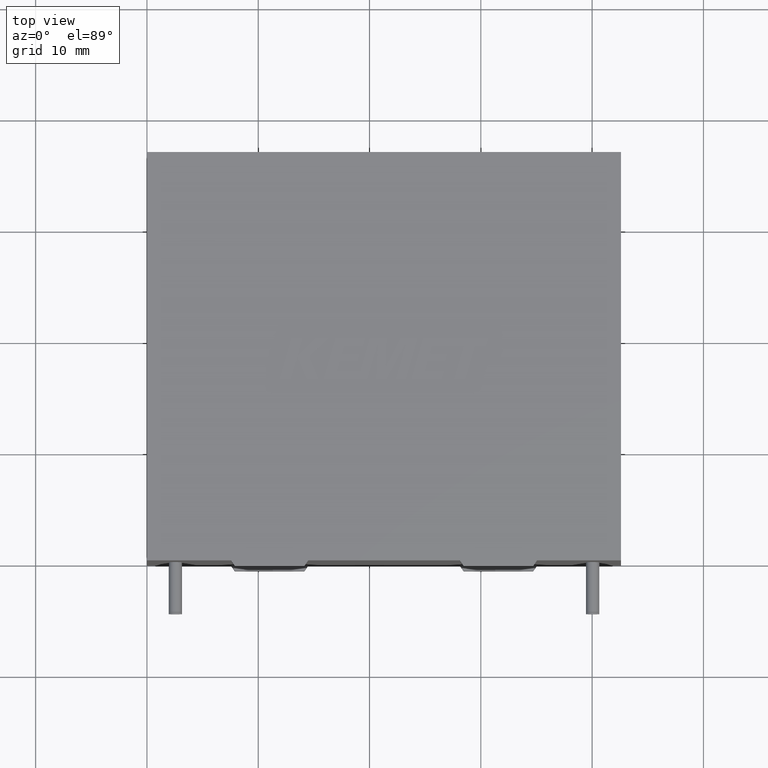
[diagram: clean part render]
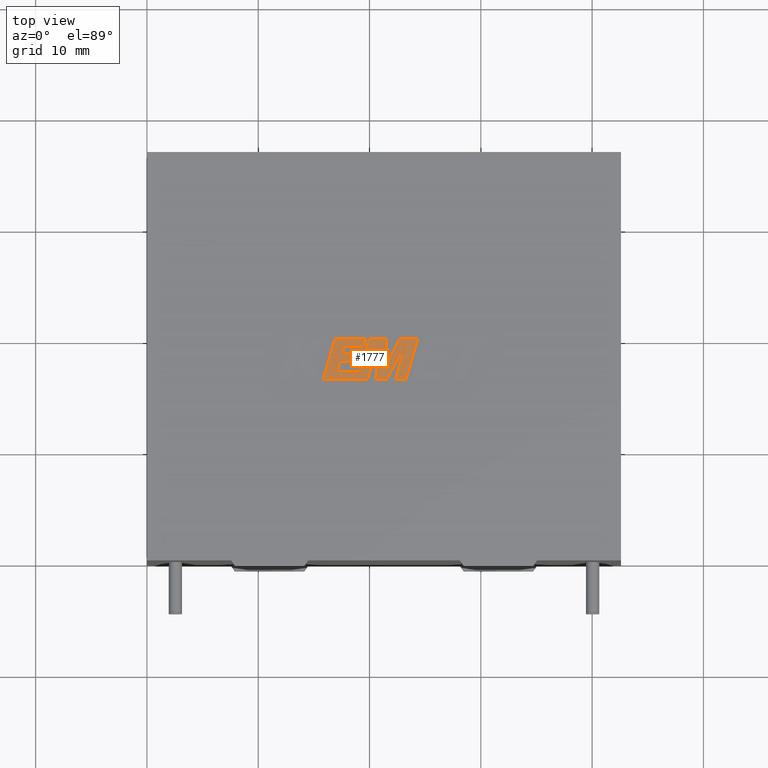
[diagram: same view with one face highlighted and labeled with its STEP entity id]
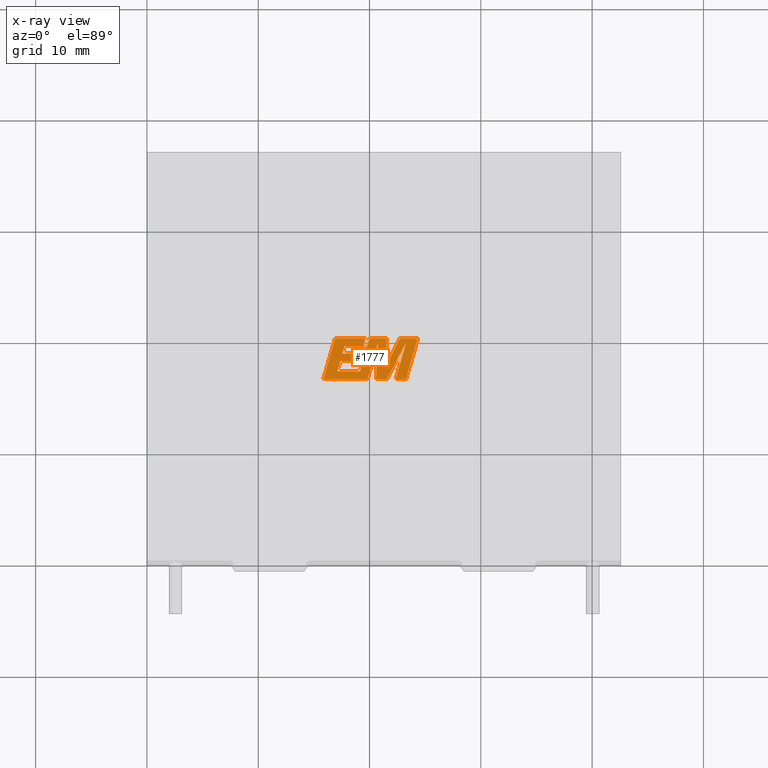
[diagram: x-ray of the same camera — body ghosted, the highlighted face saturated]
A machine part, top view. The second image highlights one B-rep face of the part: STEP entity #1777.
The next image is the same camera in x-ray: the body ghosted, the highlighted face saturated — about 0% of this face is hidden behind the body in this view.
In plain terms, the highlighted planar face has unit normal (0, 0, -1).
Its self-contained STEP definition (entity closure, byte-faithful):
#13 = PLANE ( 'NONE',  #2867 ) ;
#18 = DIRECTION ( 'NONE',  ( 0.2759782365590797700, 0.9611638845408937400, 0.0000000000000000000 ) ) ;
#34 = LINE ( 'NONE', #2845, #1220 ) ;
#39 = CARTESIAN_POINT ( 'NONE',  ( 24.34385082149052700, 19.96864435772087300, 28.40500000000000100 ) ) ;
#42 = CARTESIAN_POINT ( 'NONE',  ( 17.09779395475023000, 16.98632166693396100, 28.40500000000000100 ) ) ;
#45 = CARTESIAN_POINT ( 'NONE',  ( 23.28495559953109500, 16.28562499999988600, 28.40500000000000100 ) ) ;
#66 = VERTEX_POINT ( 'NONE', #2467 ) ;
#93 = ORIENTED_EDGE ( 'NONE', *, *, #2479, .T. ) ;
#105 = DIRECTION ( 'NONE',  ( -0.2762517575166419400, -0.9610853065513832400, 0.0000000000000000000 ) ) ;
#124 = LINE ( 'NONE', #42, #207 ) ;
#126 = CARTESIAN_POINT ( 'NONE',  ( 22.72850358042765600, 19.96864435772087300, 28.40500000000000100 ) ) ;
#207 = VECTOR ( 'NONE', #1577, 1000.000000000000100 ) ;
#221 = EDGE_CURVE ( 'NONE', #2828, #961, #631, .T. ) ;
#240 = VECTOR ( 'NONE', #2085, 1000.000000000000000 ) ;
#260 = DIRECTION ( 'NONE',  ( 1.000000000000000000, 0.0000000000000000000, 0.0000000000000000000 ) ) ;
#269 = LINE ( 'NONE', #2573, #2908 ) ;
#270 = DIRECTION ( 'NONE',  ( 1.000000000000000000, 0.0000000000000000000, 0.0000000000000000000 ) ) ;
#282 = CARTESIAN_POINT ( 'NONE',  ( 20.57403108235148500, 16.28562499999988200, 28.40500000000000100 ) ) ;
#285 = LINE ( 'NONE', #282, #2687 ) ;
#292 = ORIENTED_EDGE ( 'NONE', *, *, #2856, .T. ) ;
#319 = CARTESIAN_POINT ( 'NONE',  ( 24.34385082149052700, 19.96864435772087300, 28.40500000000000100 ) ) ;
#354 = EDGE_CURVE ( 'NONE', #2199, #2894, #34, .T. ) ;
#399 = EDGE_CURVE ( 'NONE', #961, #2736, #2836, .T. ) ;
#440 = CARTESIAN_POINT ( 'NONE',  ( 16.90843675577583100, 19.96864435772087300, 28.40500000000000100 ) ) ;
#455 = DIRECTION ( 'NONE',  ( 1.000000000000000000, 0.0000000000000000000, 0.0000000000000000000 ) ) ;
#460 = VECTOR ( 'NONE', #2953, 1000.000000000000000 ) ;
#464 = EDGE_CURVE ( 'NONE', #2976, #1749, #864, .T. ) ;
#468 = CARTESIAN_POINT ( 'NONE',  ( 15.84861204670732300, 16.28562499999988200, 28.40500000000000100 ) ) ;
#483 = ORIENTED_EDGE ( 'NONE', *, *, #2848, .T. ) ;
#484 = ORIENTED_EDGE ( 'NONE', *, *, #221, .T. ) ;
#485 = EDGE_CURVE ( 'NONE', #2809, #2164, #1942, .T. ) ;
#553 = CARTESIAN_POINT ( 'NONE',  ( 19.81635591708048900, 16.28562499999988200, 28.40500000000000100 ) ) ;
#592 = EDGE_CURVE ( 'NONE', #2528, #2274, #707, .T. ) ;
#598 = ORIENTED_EDGE ( 'NONE', *, *, #354, .T. ) ;
#631 = LINE ( 'NONE', #2769, #3287 ) ;
#670 = DIRECTION ( 'NONE',  ( 0.2746459304916927800, 0.9615454294334472300, 0.0000000000000000000 ) ) ;
#676 = CARTESIAN_POINT ( 'NONE',  ( -0.2046702566905634300, 0.4081393718311475700, 28.40499999999999400 ) ) ;
#681 = VERTEX_POINT ( 'NONE', #2462 ) ;
#684 = EDGE_CURVE ( 'NONE', #921, #3056, #3327, .T. ) ;
#689 = LINE ( 'NONE', #1287, #1162 ) ;
#696 = ORIENTED_EDGE ( 'NONE', *, *, #785, .T. ) ;
#707 = LINE ( 'NONE', #1659, #460 ) ;
#781 = ORIENTED_EDGE ( 'NONE', *, *, #399, .T. ) ;
#785 = EDGE_CURVE ( 'NONE', #681, #2980, #2592, .T. ) ;
#790 = DIRECTION ( 'NONE',  ( 0.2763139702539121300, 0.9610674221107070600, 0.0000000000000000000 ) ) ;
#800 = DIRECTION ( 'NONE',  ( -0.4443210308329544900, -0.8958676361826788400, 0.0000000000000000000 ) ) ;
#812 = CARTESIAN_POINT ( 'NONE',  ( 17.75219559178977500, 19.26760053406248800, 28.40500000000000100 ) ) ;
#817 = CARTESIAN_POINT ( 'NONE',  ( 19.62932803072369500, 19.96864435772087300, 28.40500000000000100 ) ) ;
#839 = CARTESIAN_POINT ( 'NONE',  ( 21.56515468792595400, 19.96864435772087300, 28.40500000000000100 ) ) ;
#864 = LINE ( 'NONE', #1584, #240 ) ;
#914 = ORIENTED_EDGE ( 'NONE', *, *, #2522, .T. ) ;
#921 = VERTEX_POINT ( 'NONE', #1296 ) ;
#922 = VECTOR ( 'NONE', #1787, 1000.000000000000100 ) ;
#932 = EDGE_CURVE ( 'NONE', #1198, #921, #269, .T. ) ;
#955 = EDGE_LOOP ( 'NONE', ( #1056, #1957, #1598, #93, #1317, #1346, #3229, #598, #2570, #1199, #696, #1311, #483, #1962, #914, #484, #781, #2574, #2447, #2851, #292, #2611, #1334 ) ) ;
#961 = VERTEX_POINT ( 'NONE', #553 ) ;
#977 = CARTESIAN_POINT ( 'NONE',  ( 21.55589110578521400, 16.28562499999988200, 28.40500000000000100 ) ) ;
#981 = VERTEX_POINT ( 'NONE', #319 ) ;
#999 = CARTESIAN_POINT ( 'NONE',  ( 17.55286043641822500, 18.58255951585596900, 28.40500000000000100 ) ) ;
#1029 = EDGE_CURVE ( 'NONE', #66, #2809, #2743, .T. ) ;
#1055 = CARTESIAN_POINT ( 'NONE',  ( 19.13365541010438900, 18.58255951585596900, 28.40500000000000100 ) ) ;
#1056 = ORIENTED_EDGE ( 'NONE', *, *, #1620, .T. ) ;
#1109 = VECTOR ( 'NONE', #2108, 1000.000000000000000 ) ;
#1112 = LINE ( 'NONE', #812, #3170 ) ;
#1129 = EDGE_CURVE ( 'NONE', #2894, #1895, #1801, .T. ) ;
#1138 = CARTESIAN_POINT ( 'NONE',  ( 19.43021684743647300, 19.26760053406248800, 28.40500000000000100 ) ) ;
#1153 = LINE ( 'NONE', #1780, #1743 ) ;
#1162 = VECTOR ( 'NONE', #1542, 1000.000000000000000 ) ;
#1185 = DIRECTION ( 'NONE',  ( 0.05375259206908725900, 0.9985542843760945000, 0.0000000000000000000 ) ) ;
#1191 = VECTOR ( 'NONE', #1405, 1000.000000000000000 ) ;
#1198 = VERTEX_POINT ( 'NONE', #126 ) ;
#1199 = ORIENTED_EDGE ( 'NONE', *, *, #3093, .T. ) ;
#1217 = CARTESIAN_POINT ( 'NONE',  ( 19.13945628708689700, 16.98632166693396100, 28.40500000000000100 ) ) ;
#1220 = VECTOR ( 'NONE', #260, 1000.000000000000000 ) ;
#1263 = CARTESIAN_POINT ( 'NONE',  ( 19.81635591708048900, 16.28562499999988200, 28.40500000000000100 ) ) ;
#1287 = CARTESIAN_POINT ( 'NONE',  ( 21.56515468792595400, 19.96864435772087300, 28.40500000000000100 ) ) ;
#1296 = CARTESIAN_POINT ( 'NONE',  ( 21.42351629502518400, 17.33744800757221700, 28.40500000000000100 ) ) ;
#1311 = ORIENTED_EDGE ( 'NONE', *, *, #1594, .T. ) ;
#1317 = ORIENTED_EDGE ( 'NONE', *, *, #1029, .T. ) ;
#1325 = LINE ( 'NONE', #45, #2494 ) ;
#1334 = ORIENTED_EDGE ( 'NONE', *, *, #2461, .T. ) ;
#1346 = ORIENTED_EDGE ( 'NONE', *, *, #485, .T. ) ;
#1355 = EDGE_CURVE ( 'NONE', #2736, #2050, #1153, .T. ) ;
#1402 = VECTOR ( 'NONE', #2312, 1000.000000000000000 ) ;
#1405 = DIRECTION ( 'NONE',  ( -1.000000000000000000, 0.0000000000000000000, 0.0000000000000000000 ) ) ;
#1440 = CARTESIAN_POINT ( 'NONE',  ( 20.75782257504268500, 19.56452032672960000, 28.40500000000000100 ) ) ;
#1469 = DIRECTION ( 'NONE',  ( 0.2732148821746366300, 0.9619530280415459200, 0.0000000000000000000 ) ) ;
#1489 = DIRECTION ( 'NONE',  ( -0.05596501978068269700, -0.9984327301130245800, 0.0000000000000000000 ) ) ;
#1509 = VERTEX_POINT ( 'NONE', #2882 ) ;
#1511 = CARTESIAN_POINT ( 'NONE',  ( 22.34904344926998800, 16.28562499999988600, 28.40500000000000100 ) ) ;
#1542 = DIRECTION ( 'NONE',  ( -1.000000000000000000, 0.0000000000000000000, 0.0000000000000000000 ) ) ;
#1577 = DIRECTION ( 'NONE',  ( 0.2740217765954065500, 0.9617234872620595800, 0.0000000000000000000 ) ) ;
#1584 = CARTESIAN_POINT ( 'NONE',  ( 22.34904344926998800, 16.28562499999988600, 28.40500000000000100 ) ) ;
#1594 = EDGE_CURVE ( 'NONE', #2980, #3262, #1112, .T. ) ;
#1598 = ORIENTED_EDGE ( 'NONE', *, *, #684, .T. ) ;
#1608 = DIRECTION ( 'NONE',  ( -1.000000000000000000, 0.0000000000000000000, 0.0000000000000000000 ) ) ;
#1620 = EDGE_CURVE ( 'NONE', #981, #1198, #2114, .T. ) ;
#1659 = CARTESIAN_POINT ( 'NONE',  ( 19.62932803072369500, 19.96864435772087300, 28.40500000000000100 ) ) ;
#1743 = VECTOR ( 'NONE', #1489, 1000.000000000000100 ) ;
#1749 = VERTEX_POINT ( 'NONE', #2737 ) ;
#1765 = EDGE_CURVE ( 'NONE', #1509, #2196, #2981, .T. ) ;
#1773 = DIRECTION ( 'NONE',  ( 0.2793947940878344600, 0.9601763114327578300, 0.0000000000000000000 ) ) ;
#1777 = ADVANCED_FACE ( 'NONE', ( #2042 ), #13, .F. ) ;
#1780 = CARTESIAN_POINT ( 'NONE',  ( 20.75782257504268500, 19.56452032672960000, 28.40500000000000100 ) ) ;
#1787 = DIRECTION ( 'NONE',  ( 0.4668459304955213700, 0.8843386665637610300, 0.0000000000000000000 ) ) ;
#1801 = LINE ( 'NONE', #1900, #3013 ) ;
#1812 = CARTESIAN_POINT ( 'NONE',  ( 19.13365541010438900, 18.58255951585596900, 28.40500000000000100 ) ) ;
#1895 = VERTEX_POINT ( 'NONE', #1055 ) ;
#1900 = CARTESIAN_POINT ( 'NONE',  ( 18.93918044897039700, 17.90169557702803300, 28.40500000000000100 ) ) ;
#1942 = LINE ( 'NONE', #3154, #2386 ) ;
#1957 = ORIENTED_EDGE ( 'NONE', *, *, #932, .T. ) ;
#1962 = ORIENTED_EDGE ( 'NONE', *, *, #592, .T. ) ;
#2023 = CARTESIAN_POINT ( 'NONE',  ( 17.75219559178977500, 19.26760053406248800, 28.40500000000000100 ) ) ;
#2042 = FACE_OUTER_BOUND ( 'NONE', #955, .T. ) ;
#2050 = VERTEX_POINT ( 'NONE', #2657 ) ;
#2069 = LINE ( 'NONE', #2496, #3256 ) ;
#2085 = DIRECTION ( 'NONE',  ( 1.000000000000000000, 0.0000000000000000000, 0.0000000000000000000 ) ) ;
#2101 = VECTOR ( 'NONE', #18, 1000.000000000000100 ) ;
#2108 = DIRECTION ( 'NONE',  ( -1.000000000000000000, 0.0000000000000000000, 0.0000000000000000000 ) ) ;
#2114 = LINE ( 'NONE', #39, #1191 ) ;
#2164 = VERTEX_POINT ( 'NONE', #2184 ) ;
#2184 = CARTESIAN_POINT ( 'NONE',  ( 17.09779395475023000, 16.98632166693396100, 28.40500000000000100 ) ) ;
#2196 = VERTEX_POINT ( 'NONE', #3255 ) ;
#2199 = VERTEX_POINT ( 'NONE', #2728 ) ;
#2274 = VERTEX_POINT ( 'NONE', #440 ) ;
#2297 = VECTOR ( 'NONE', #1773, 1000.000000000000200 ) ;
#2312 = DIRECTION ( 'NONE',  ( -0.2765379750249960000, -0.9610029908221278100, 0.0000000000000000000 ) ) ;
#2318 = VECTOR ( 'NONE', #105, 1000.000000000000200 ) ;
#2386 = VECTOR ( 'NONE', #1608, 1000.000000000000000 ) ;
#2447 = ORIENTED_EDGE ( 'NONE', *, *, #2939, .T. ) ;
#2461 = EDGE_CURVE ( 'NONE', #1749, #981, #1325, .T. ) ;
#2462 = CARTESIAN_POINT ( 'NONE',  ( 17.55286043641822500, 18.58255951585596900, 28.40500000000000100 ) ) ;
#2467 = CARTESIAN_POINT ( 'NONE',  ( 19.99668704401929300, 19.96864435772087300, 28.40500000000000100 ) ) ;
#2479 = EDGE_CURVE ( 'NONE', #3056, #66, #689, .T. ) ;
#2481 = LINE ( 'NONE', #1812, #1109 ) ;
#2494 = VECTOR ( 'NONE', #790, 1000.000000000000200 ) ;
#2496 = CARTESIAN_POINT ( 'NONE',  ( 23.29516872659226200, 19.58031035869222700, 28.40500000000000100 ) ) ;
#2522 = EDGE_CURVE ( 'NONE', #2274, #2828, #2660, .T. ) ;
#2528 = VERTEX_POINT ( 'NONE', #817 ) ;
#2566 = CARTESIAN_POINT ( 'NONE',  ( 18.93918044897039700, 17.90169557702803300, 28.40500000000000100 ) ) ;
#2570 = ORIENTED_EDGE ( 'NONE', *, *, #1129, .T. ) ;
#2573 = CARTESIAN_POINT ( 'NONE',  ( 22.72850358042765600, 19.96864435772087300, 28.40500000000000100 ) ) ;
#2574 = ORIENTED_EDGE ( 'NONE', *, *, #1355, .T. ) ;
#2592 = LINE ( 'NONE', #999, #2297 ) ;
#2605 = VECTOR ( 'NONE', #1469, 1000.000000000000200 ) ;
#2609 = CARTESIAN_POINT ( 'NONE',  ( 16.90843675577583100, 19.96864435772087300, 28.40500000000000100 ) ) ;
#2611 = ORIENTED_EDGE ( 'NONE', *, *, #464, .T. ) ;
#2618 = DIRECTION ( 'NONE',  ( 1.000000000000000000, 0.0000000000000000000, 0.0000000000000000000 ) ) ;
#2644 = CARTESIAN_POINT ( 'NONE',  ( 19.99668704401929300, 19.96864435772087300, 28.40500000000000100 ) ) ;
#2657 = CARTESIAN_POINT ( 'NONE',  ( 20.57403108235148500, 16.28562499999988200, 28.40500000000000100 ) ) ;
#2660 = LINE ( 'NONE', #2609, #1402 ) ;
#2687 = VECTOR ( 'NONE', #270, 1000.000000000000000 ) ;
#2728 = CARTESIAN_POINT ( 'NONE',  ( 17.35860944736875700, 17.90169557702803300, 28.40500000000000100 ) ) ;
#2736 = VERTEX_POINT ( 'NONE', #1440 ) ;
#2737 = CARTESIAN_POINT ( 'NONE',  ( 23.28495559953109500, 16.28562499999988600, 28.40500000000000100 ) ) ;
#2738 = CARTESIAN_POINT ( 'NONE',  ( 21.42351629502518400, 17.33744800757221700, 28.40500000000000100 ) ) ;
#2743 = LINE ( 'NONE', #2644, #2318 ) ;
#2758 = DIRECTION ( 'NONE',  ( -0.2760118818968562100, -0.9611542233438689100, 0.0000000000000000000 ) ) ;
#2769 = CARTESIAN_POINT ( 'NONE',  ( 15.84861204670732300, 16.28562499999988200, 28.40500000000000100 ) ) ;
#2809 = VERTEX_POINT ( 'NONE', #1217 ) ;
#2828 = VERTEX_POINT ( 'NONE', #468 ) ;
#2836 = LINE ( 'NONE', #1263, #2101 ) ;
#2844 = LINE ( 'NONE', #3023, #2605 ) ;
#2845 = CARTESIAN_POINT ( 'NONE',  ( 17.35860944736875700, 17.90169557702803300, 28.40500000000000100 ) ) ;
#2848 = EDGE_CURVE ( 'NONE', #3262, #2528, #2844, .T. ) ;
#2851 = ORIENTED_EDGE ( 'NONE', *, *, #1765, .T. ) ;
#2856 = EDGE_CURVE ( 'NONE', #2196, #2976, #2069, .T. ) ;
#2867 = AXIS2_PLACEMENT_3D ( 'NONE', #676, #3069, #3341 ) ;
#2882 = CARTESIAN_POINT ( 'NONE',  ( 21.55589110578521400, 16.28562499999988200, 28.40500000000000100 ) ) ;
#2894 = VERTEX_POINT ( 'NONE', #2566 ) ;
#2908 = VECTOR ( 'NONE', #800, 1000.000000000000200 ) ;
#2939 = EDGE_CURVE ( 'NONE', #2050, #1509, #285, .T. ) ;
#2953 = DIRECTION ( 'NONE',  ( -1.000000000000000000, 0.0000000000000000000, 0.0000000000000000000 ) ) ;
#2976 = VERTEX_POINT ( 'NONE', #1511 ) ;
#2980 = VERTEX_POINT ( 'NONE', #2023 ) ;
#2981 = LINE ( 'NONE', #977, #922 ) ;
#3013 = VECTOR ( 'NONE', #670, 999.9999999999998900 ) ;
#3023 = CARTESIAN_POINT ( 'NONE',  ( 19.43021684743647300, 19.26760053406248800, 28.40500000000000100 ) ) ;
#3041 = EDGE_CURVE ( 'NONE', #2164, #2199, #124, .T. ) ;
#3056 = VERTEX_POINT ( 'NONE', #839 ) ;
#3069 = DIRECTION ( 'NONE',  ( 0.0000000000000000000, 0.0000000000000000000, -1.000000000000000000 ) ) ;
#3093 = EDGE_CURVE ( 'NONE', #1895, #681, #2481, .T. ) ;
#3154 = CARTESIAN_POINT ( 'NONE',  ( 19.13945628708689700, 16.98632166693396100, 28.40500000000000100 ) ) ;
#3170 = VECTOR ( 'NONE', #2618, 1000.000000000000000 ) ;
#3229 = ORIENTED_EDGE ( 'NONE', *, *, #3041, .T. ) ;
#3241 = VECTOR ( 'NONE', #1185, 1000.000000000000100 ) ;
#3255 = CARTESIAN_POINT ( 'NONE',  ( 23.29516872659226200, 19.58031035869222700, 28.40500000000000100 ) ) ;
#3256 = VECTOR ( 'NONE', #2758, 1000.000000000000200 ) ;
#3262 = VERTEX_POINT ( 'NONE', #1138 ) ;
#3287 = VECTOR ( 'NONE', #455, 1000.000000000000000 ) ;
#3327 = LINE ( 'NONE', #2738, #3241 ) ;
#3341 = DIRECTION ( 'NONE',  ( -1.000000000000000000, 0.0000000000000000000, 0.0000000000000000000 ) ) ;